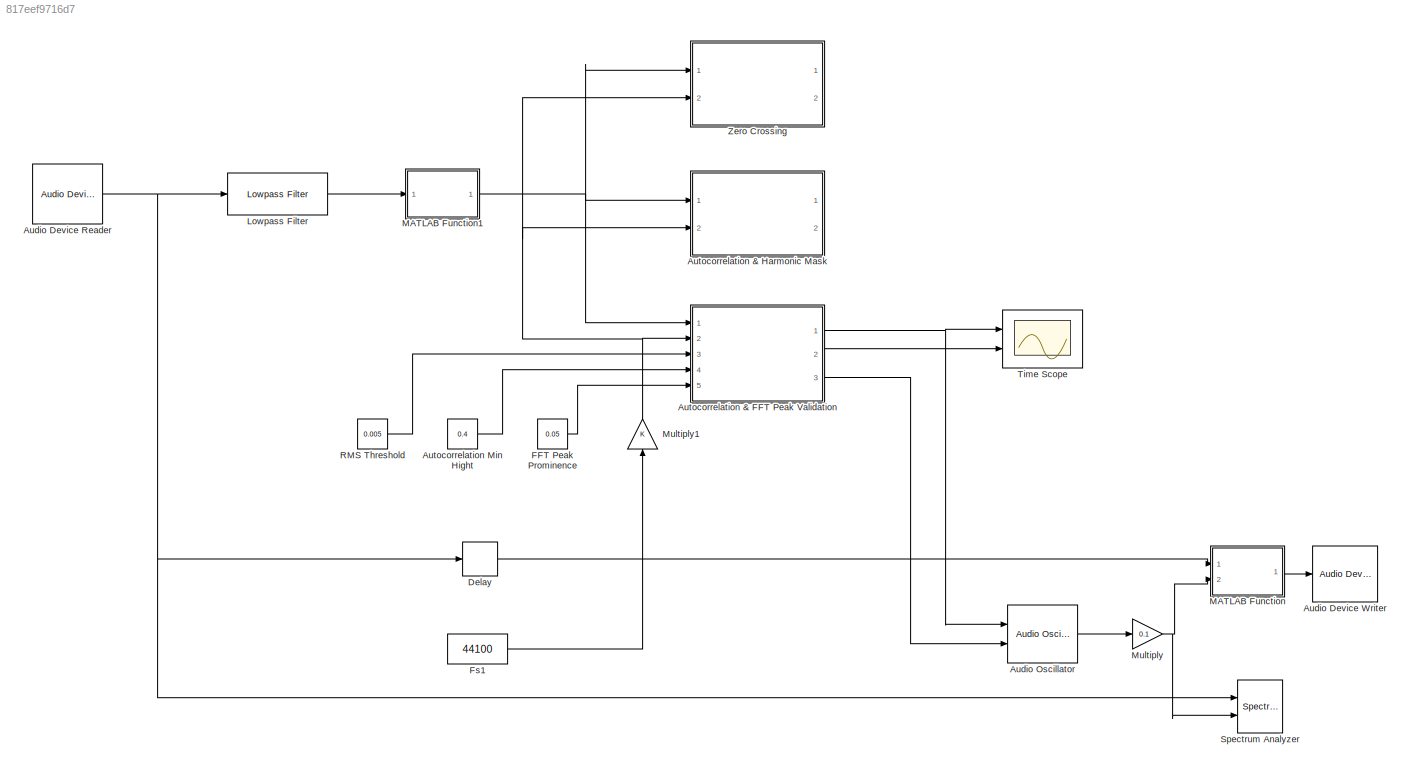
MODEL slx_817eef9716d7
KIND model
CONFIG AbsTol = auto
CONFIG EnableMultiTasking = off
CONFIG FixedStep = auto
CONFIG MaxStep = auto
CONFIG MinStep = auto
CONFIG RelTol = 1e-3
CONFIG SampleTimeConstraint = Unconstrained
CONFIG SolverName = FixedStepDiscrete
CONFIG StartTime = 0.0
CONFIG StopTime = inf
WORKSPACE source: mxarray member
WORKSPACE F0 = 44100
BLOCK [Reference] Audio Device Reader  REF=audiosources/Audio Device
Reader
  Ports = [0, 1]
  SourceBlock = audiosources/Audio Device\nReader
  SourceProductBaseCode = AU
  SourceType = Audio Device Reader
BLOCK [Reference] Audio Device Writer  REF=dspsnks4/Audio Device
Writer
  Ports = [1]
  SourceBlock = dspsnks4/Audio Device\nWriter
  SourceProductBaseCode = DS
  SourceType = Audio Device Writer
BLOCK [Reference] Audio Oscillator  REF=audiosources/Audio Oscillator
  Ports = [2, 1]
  SourceBlock = audiosources/Audio Oscillator
  SourceProductBaseCode = AU
  SourceType = audio.simulink.AudioOscillator
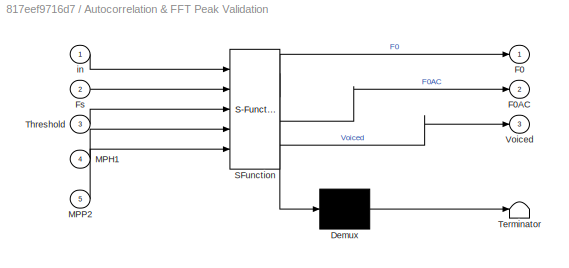
BLOCK [SubSystem] Autocorrelation & FFT Peak Validation
  ErrorFcn = Stateflow.Translate.translate
  PermitHierarchicalResolution = ExplicitOnly
  Ports = [5, 3]
  RequestExecContextInheritance = off
  SFBlockType = MATLAB Function
  TreatAsAtomicUnit = on
BLOCK [Demux] Autocorrelation & FFT Peak Validation/ Demux 
  Outputs = 1
  Ports = [1, 1]
BLOCK [S-Function] Autocorrelation & FFT Peak Validation/ SFunction 
  EnableBusSupport = on
  FunctionName = sf_sfun
  PortCounts = [5 4]
  Ports = [5, 4]
  SFcnIsStateOwnerBlock = off
  SFunctionDeploymentMode = off
  Tag = Stateflow S-Function 5
BLOCK [Terminator] Autocorrelation & FFT Peak Validation/ Terminator 
BLOCK [Outport] Autocorrelation & FFT Peak Validation/F0
BLOCK [Outport] Autocorrelation & FFT Peak Validation/F0AC
  Port = 2
BLOCK [Inport] Autocorrelation & FFT Peak Validation/Fs
  Port = 2
BLOCK [Inport] Autocorrelation & FFT Peak Validation/MPH1
  Port = 4
BLOCK [Inport] Autocorrelation & FFT Peak Validation/MPP2
  Port = 5
BLOCK [Inport] Autocorrelation & FFT Peak Validation/Threshold
  Port = 3
BLOCK [Outport] Autocorrelation & FFT Peak Validation/Voiced
  Port = 3
BLOCK [Inport] Autocorrelation & FFT Peak Validation/in
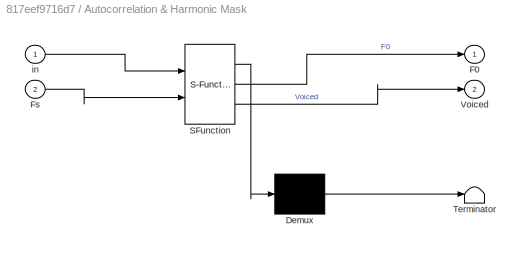
BLOCK [SubSystem] Autocorrelation & Harmonic Mask
  Commented = on
  ErrorFcn = Stateflow.Translate.translate
  PermitHierarchicalResolution = ExplicitOnly
  Ports = [2, 2]
  RequestExecContextInheritance = off
  SFBlockType = MATLAB Function
  TreatAsAtomicUnit = on
BLOCK [Demux] Autocorrelation & Harmonic Mask/ Demux 
  Outputs = 1
  Ports = [1, 1]
BLOCK [S-Function] Autocorrelation & Harmonic Mask/ SFunction 
  EnableBusSupport = on
  FunctionName = sf_sfun
  PortCounts = [2 3]
  Ports = [2, 3]
  SFcnIsStateOwnerBlock = off
  SFunctionDeploymentMode = off
  Tag = Stateflow S-Function 3
BLOCK [Terminator] Autocorrelation & Harmonic Mask/ Terminator 
BLOCK [Outport] Autocorrelation & Harmonic Mask/F0
BLOCK [Inport] Autocorrelation & Harmonic Mask/Fs
  Port = 2
BLOCK [Outport] Autocorrelation & Harmonic Mask/Voiced
  Port = 2
BLOCK [Inport] Autocorrelation & Harmonic Mask/in
BLOCK [Constant] Autocorrelation Min Hight
  Value = 0.4
BLOCK [Delay] Delay
  DelayLength = 2048
  InitialCondition = 0
  InputPortMap = u0
  InputProcessing = Columns as channels (frame based)
  Ports = [1, 1]
  UseCircularBuffer = on
BLOCK [Constant] FFT Peak Prominence
  Value = 0.05
BLOCK [Constant] Fs1
  Value = 44100
BLOCK [Reference] Lowpass Filter  REF=dspfdesign/Lowpass Filter
  Ports = [1, 1]
  SourceBlock = dspfdesign/Lowpass Filter
  SourceProductBaseCode = DS
  SourceType = dsp.LowpassFilter
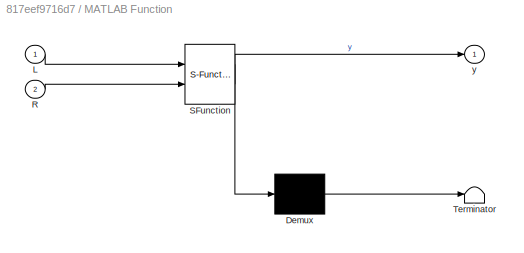
BLOCK [SubSystem] MATLAB Function
  ErrorFcn = Stateflow.Translate.translate
  PermitHierarchicalResolution = ExplicitOnly
  Ports = [2, 1]
  RequestExecContextInheritance = off
  SFBlockType = MATLAB Function
  TreatAsAtomicUnit = on
BLOCK [Demux] MATLAB Function/ Demux 
  Outputs = 1
  Ports = [1, 1]
BLOCK [S-Function] MATLAB Function/ SFunction 
  EnableBusSupport = on
  FunctionName = sf_sfun
  PortCounts = [2 2]
  Ports = [2, 2]
  SFcnIsStateOwnerBlock = off
  SFunctionDeploymentMode = off
  Tag = Stateflow S-Function 4
BLOCK [Terminator] MATLAB Function/ Terminator 
BLOCK [Inport] MATLAB Function/L
BLOCK [Inport] MATLAB Function/R
  Port = 2
BLOCK [Outport] MATLAB Function/y
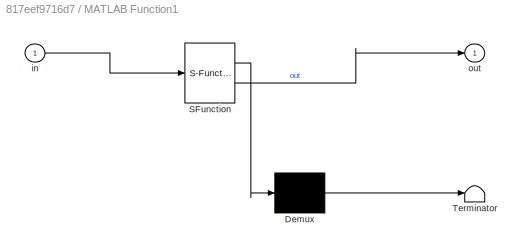
BLOCK [SubSystem] MATLAB Function1
  ErrorFcn = Stateflow.Translate.translate
  PermitHierarchicalResolution = ExplicitOnly
  Ports = [1, 1]
  RequestExecContextInheritance = off
  SFBlockType = MATLAB Function
  TreatAsAtomicUnit = on
BLOCK [Demux] MATLAB Function1/ Demux 
  Outputs = 1
  Ports = [1, 1]
BLOCK [S-Function] MATLAB Function1/ SFunction 
  EnableBusSupport = on
  FunctionName = sf_sfun
  PortCounts = [1 2]
  Ports = [1, 2]
  SFcnIsStateOwnerBlock = off
  SFunctionDeploymentMode = off
  Tag = Stateflow S-Function 1
BLOCK [Terminator] MATLAB Function1/ Terminator 
BLOCK [Inport] MATLAB Function1/in
BLOCK [Outport] MATLAB Function1/out
BLOCK [Gain] Multiply
  Gain = 0.1
BLOCK [Gain] Multiply1
  NameLocation = right
BLOCK [Constant] RMS Threshold
  Value = 0.005
BLOCK [SpectrumAnalyzer] Spectrum Analyzer
  NumInputPorts = 2
  Ports = [2]
  ScopeSpecificationString = spbscopes.SpectrumAnalyzerBlockCfg('CurrentConfiguration', extmgr.ConfigurationSet(extmgr.Configuration('Core','General UI',true),extmgr.Configuration('Core','Source UI',true),extmgr.Configuration('Sources','WiredSimulink',true),extmgr.Configuration('Visuals','Spectrum',true,'AxesProperties',struct('Color',{[0 0 0],[0 0 0]},'XColor',{[0.686274509803922 0.686274509803922 0.686274509803922],[0.68627...<+2219ch>
BLOCK [Scope] Time Scope
  DefaultConfigurationName = spbscopes.TimeScopeBlockCfg
  Floating = off
  NumInputPorts = 2
  Ports = [2]
  ScopeSpecificationString = spbscopes.TimeScopeBlockCfg('CurrentConfiguration', extmgr.ConfigurationSet(extmgr.Configuration('Core','General UI',true,'FigureColor',[0.156862745098039 0.156862745098039 0.156862745098039]),extmgr.Configuration('Core','Source UI',true),extmgr.Configuration('Sources','WiredSimulink',true),extmgr.Configuration('Visuals','Time Domain',true,'DisplayPropertyDefaults',struct('MinYLimReal','-82.27612'...<+1566ch>
  UserDataPersistent = on
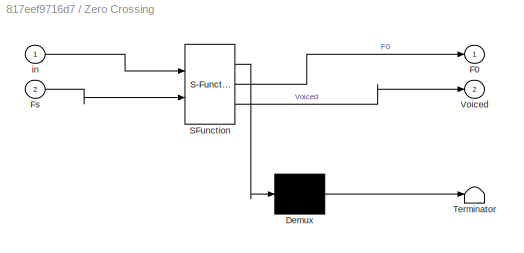
BLOCK [SubSystem] Zero Crossing
  Commented = on
  ErrorFcn = Stateflow.Translate.translate
  PermitHierarchicalResolution = ExplicitOnly
  Ports = [2, 2]
  RequestExecContextInheritance = off
  SFBlockType = MATLAB Function
  TreatAsAtomicUnit = on
BLOCK [Demux] Zero Crossing/ Demux 
  Outputs = 1
  Ports = [1, 1]
BLOCK [S-Function] Zero Crossing/ SFunction 
  EnableBusSupport = on
  FunctionName = sf_sfun
  PortCounts = [2 3]
  Ports = [2, 3]
  SFcnIsStateOwnerBlock = off
  SFunctionDeploymentMode = off
  Tag = Stateflow S-Function 2
BLOCK [Terminator] Zero Crossing/ Terminator 
BLOCK [Outport] Zero Crossing/F0
BLOCK [Inport] Zero Crossing/Fs
  Port = 2
BLOCK [Outport] Zero Crossing/Voiced
  Port = 2
BLOCK [Inport] Zero Crossing/in
NET Audio Device Reader:1 -> Delay:1, Lowpass Filter:1, Spectrum Analyzer:1
LINE Audio Oscillator:1 -> Multiply:1
NET Autocorrelation & FFT Peak Validation:1 -> Audio Oscillator:1, Time Scope:1
LINE Autocorrelation & FFT Peak Validation:2 -> Time Scope:2
LINE Autocorrelation & FFT Peak Validation:3 -> Audio Oscillator:2
LINE Autocorrelation Min Hight:1 -> Autocorrelation & FFT Peak Validation:4
LINE Delay:1 -> MATLAB Function:1
LINE FFT Peak Prominence:1 -> Autocorrelation & FFT Peak Validation:5
LINE Fs1:1 -> Multiply1:1
LINE Lowpass Filter:1 -> MATLAB Function1:1
NET MATLAB Function1:1 -> Autocorrelation & FFT Peak Validation:1, Autocorrelation & Harmonic Mask:1, Zero Crossing:1
LINE MATLAB Function:1 -> Audio Device Writer:1
NET Multiply1:1 -> Autocorrelation & FFT Peak Validation:2, Autocorrelation & Harmonic Mask:2, Zero Crossing:2
NET Multiply:1 -> MATLAB Function:2, Spectrum Analyzer:2
LINE RMS Threshold:1 -> Autocorrelation & FFT Peak Validation:3
note: NET lines group one-source signal fan-out (src -> all destinations, sorted); 1:1 wires keep LINE
CHART MATLAB Function1 states=1 transitions=1
  STATE_LABEL 'eML_blk_kernel()'
  STATE_LABEL 'SCRIPT:\nfunction out = fcn(in)\n    in = flipud(in);\n\n    N = 4096;\n\n    persistent Buffer\n    if isempty(Buffer)\n        Buffer = zeros(N,1);\n    end\n    \n    if length(in) < N\n        Buffer(length(in)+1:end) = Buffer(1:end-length(in));\n        Buffer(1:length(in))= in(1:length(in));\n    else\n        Buffer = in(1:N);\n    end\n    \n    %{\n    clf;\n    plot(Buffer);\n    drawnow;\n    %}\n    \n    out...<+16ch>'
CHART Zero Crossing states=1 transitions=1
  STATE_LABEL 'eML_blk_kernel()'
  STATE_LABEL 'SCRIPT:\nfunction [F0, Voiced] = fcn(in,Fs)\n\n    in = in;\n\n    persistent f\n    if isempty(f)\n        f = figure(1);\n    end\n    \n    rmsvalue = rms(in);\n    calc_diff = @(X) [X(1);X].*[X;X(end)];\n    cross = find(calc_diff(in) < 0);\n    if length(cross) > 3 && rmsvalue > 0.01\n        T = cross(3:end)-cross(1:end-2);\n        F0 = Fs/mean(T);\n        Voiced = 1;\n    else\n        F0 = 0;\n        Voic...<+393ch>'
CHART Autocorrelation &
Harmonic Mask states=1 transitions=1
  STATE_LABEL 'eML_blk_kernel()'
  STATE_LABEL 'SCRIPT:\nfunction [F0, Voiced] = fcn(in,Fs)\n    \n    %% Init\n    coder.extrinsic("imagesc");\n    coder.extrinsic("xline");\n    coder.extrinsic("legend");\n    coder.extrinsic("bar");\n    coder.extrinsic("area");\n    \n    persistent f\n    persistent F0Buff\n    persistent F0ACBuff\n    persistent SBuff\n    persistent WinFunc\n    \n    BuffN = 50;\n    \n    if isempty(f)\n        f = figure(1);\n        F0B...<+2297ch>'
CHART MATLAB Function states=1 transitions=1
  STATE_LABEL 'eML_blk_kernel()'
  STATE_LABEL 'SCRIPT:\nfunction y = fcn(L, R)\ncoeff = 1;\ny = [coeff*L+R, L+coeff*R]/(coeff+1);\nend'
CHART Autocorrelation &
FFT Peak Validation states=1 transitions=1
  STATE_LABEL 'eML_blk_kernel()'
  STATE_LABEL 'SCRIPT:\nfunction [F0, F0AC, Voiced] = fcn(in,Fs,Threshold,MPH1,MPP2)\n    \n    %% Init\n    coder.extrinsic("imagesc");\n    coder.extrinsic("xline");\n    coder.extrinsic("yline");\n    coder.extrinsic("legend");\n    coder.extrinsic("bar");\n    coder.extrinsic("area");\n    \n    persistent f\n    persistent F0Buff\n    persistent F0ACBuff\n    persistent SBuff\n    persistent WinFunc\n    persistent WinFunc...<+2791ch>'
CHART  states=0 transitions=0
CHART  states=0 transitions=0
CHART  states=0 transitions=0
CHART  states=0 transitions=0
CHART  states=0 transitions=0
